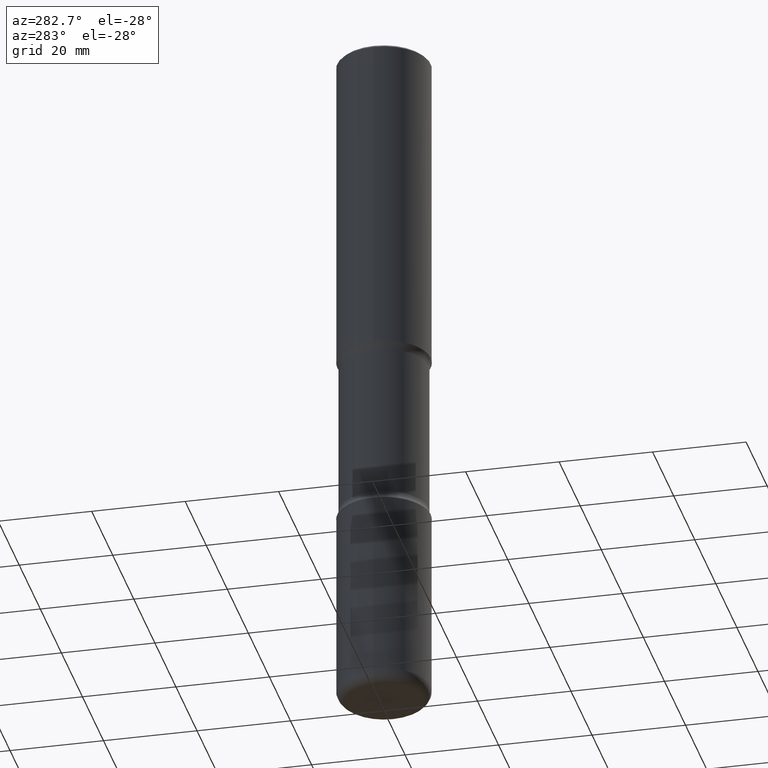
[diagram: clean part render]
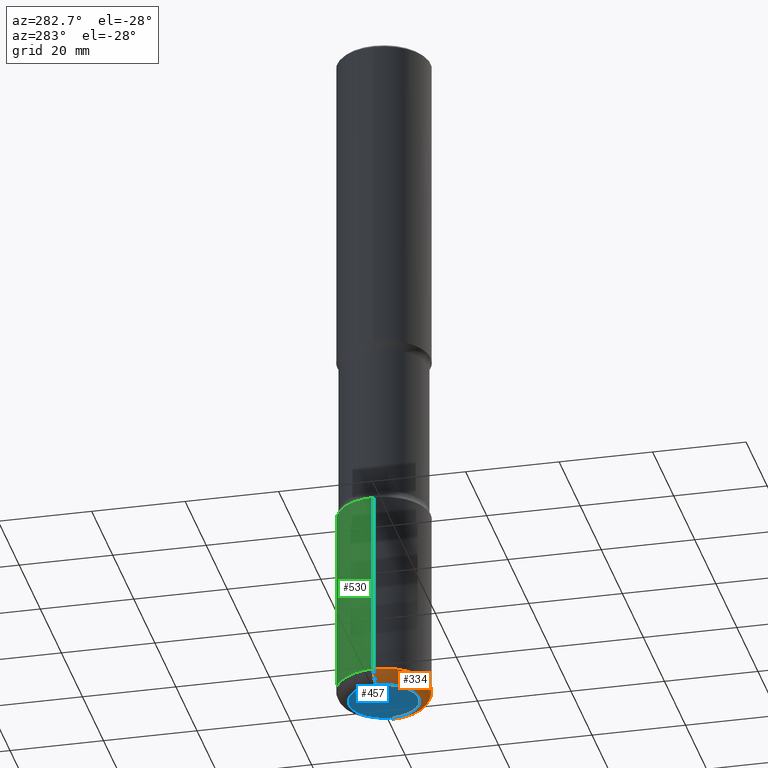
[diagram: same view with three faces highlighted in distinct colors, each labeled with its STEP entity id]
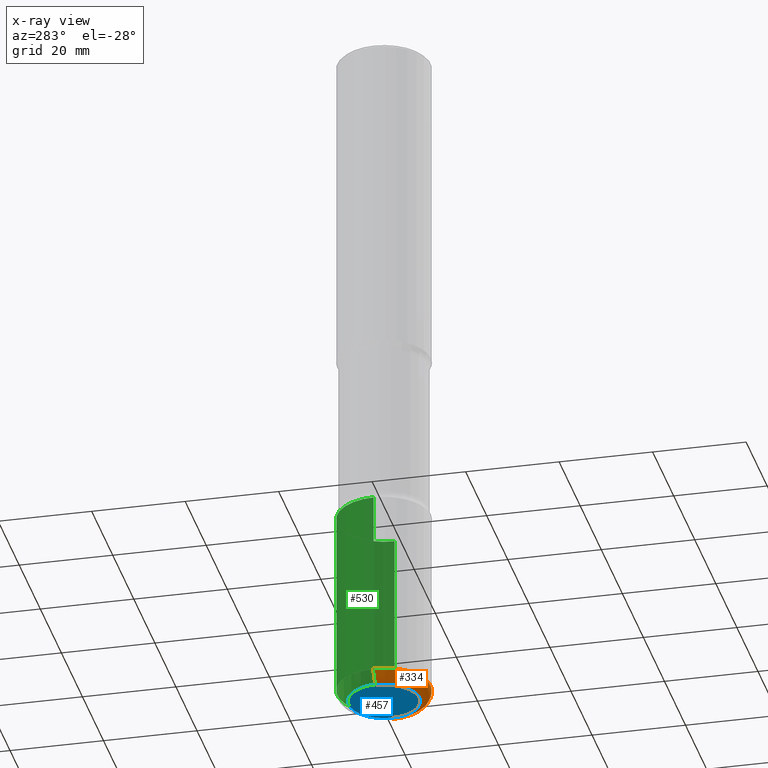
[diagram: x-ray of the same camera — body ghosted, the three highlighted faces saturated]
A machine part, auxiliary view with three faces highlighted in distinct colors.
The next image is the same camera in x-ray (body ghosted, the three faces saturated) — at least one of them is partly hidden behind the body in this view.
Their STEP definitions:

[orange] entity #334 — the highlighted toroidal blend (fillet) surface has major radius 7.5006 mm and minor (blend) radius 2.4994 mm.
#19 = CARTESIAN_POINT ( 'NONE',  ( 1.420108190439770332E-28, -2.027538128279602429E-14, -5.807099999999998374 ) ) ;
#43 = EDGE_CURVE ( 'NONE', #330, #217, #496, .T. ) ;
#58 = CIRCLE ( 'NONE', #331, 0.3937000000000004940 ) ;
#83 = DIRECTION ( 'NONE',  ( -6.982962677686266711E-15, -1.000000000000000000, 3.491481338843145583E-15 ) ) ;
#105 = DIRECTION ( 'NONE',  ( -2.445468806185136597E-29, 3.491481338843145583E-15, 1.000000000000000000 ) ) ;
#110 = DIRECTION ( 'NONE',  ( 1.000000000000000000, -6.982962677686270655E-15, 0.000000000000000000 ) ) ;
#112 = TOROIDAL_SURFACE ( 'NONE', #320, 0.2953000000000005620, 0.09840000000000062585 ) ;
#126 = CARTESIAN_POINT ( 'NONE',  ( 0.2953000000000005620, -2.233745016151678477E-14, -5.807099999999998374 ) ) ;
#144 = EDGE_LOOP ( 'NONE', ( #339, #337, #359, #466 ) ) ;
#207 = DIRECTION ( 'NONE',  ( -1.000000000000000000, 7.105427357600994759E-15, 0.000000000000000000 ) ) ;
#217 = VERTEX_POINT ( 'NONE', #237 ) ;
#237 = CARTESIAN_POINT ( 'NONE',  ( 0.3937000000000008271, -2.302457368900111381E-14, -5.807099999999998374 ) ) ;
#245 = DIRECTION ( 'NONE',  ( -2.445468806185136597E-29, 3.491481338843145583E-15, 1.000000000000000000 ) ) ;
#246 = VERTEX_POINT ( 'NONE', #375 ) ;
#262 = EDGE_CURVE ( 'NONE', #246, #330, #497, .T. ) ;
#267 = EDGE_CURVE ( 'NONE', #547, #217, #58, .T. ) ;
#270 = CIRCLE ( 'NONE', #550, 0.09840000000000061198 ) ;
#281 = CARTESIAN_POINT ( 'NONE',  ( 0.2953000000000005620, -2.268101192525895245E-14, -5.905499999999999972 ) ) ;
#284 = DIRECTION ( 'NONE',  ( 1.000000000000000000, -6.982962677686269866E-15, 0.000000000000000000 ) ) ;
#319 = CARTESIAN_POINT ( 'NONE',  ( 1.420108190439770332E-28, -2.027538128279602429E-14, -5.807099999999998374 ) ) ;
#320 = AXIS2_PLACEMENT_3D ( 'NONE', #319, #245, #495 ) ;
#324 = CARTESIAN_POINT ( 'NONE',  ( 1.444171603492632270E-28, -2.061894304653819197E-14, -5.905499999999999972 ) ) ;
#326 = DIRECTION ( 'NONE',  ( -2.445468806185136597E-29, 3.491481338843145583E-15, 1.000000000000000000 ) ) ;
#330 = VERTEX_POINT ( 'NONE', #281 ) ;
#331 = AXIS2_PLACEMENT_3D ( 'NONE', #19, #105, #284 ) ;
#334 = ADVANCED_FACE ( 'NONE', ( #464 ), #112, .T. ) ;
#337 = ORIENTED_EDGE ( 'NONE', *, *, #262, .T. ) ;
#339 = ORIENTED_EDGE ( 'NONE', *, *, #404, .F. ) ;
#359 = ORIENTED_EDGE ( 'NONE', *, *, #43, .T. ) ;
#375 = CARTESIAN_POINT ( 'NONE',  ( -0.2953000000000005620, -1.799934243997356436E-14, -5.905499999999999972 ) ) ;
#380 = CARTESIAN_POINT ( 'NONE',  ( -0.2953000000000005620, -1.817714858409644444E-14, -5.807099999999998374 ) ) ;
#391 = AXIS2_PLACEMENT_3D ( 'NONE', #126, #83, #487 ) ;
#392 = AXIS2_PLACEMENT_3D ( 'NONE', #324, #326, #110 ) ;
#404 = EDGE_CURVE ( 'NONE', #246, #547, #270, .T. ) ;
#433 = CARTESIAN_POINT ( 'NONE',  ( -0.3937000000000008271, -1.747797453210850398E-14, -5.807099999999998374 ) ) ;
#464 = FACE_OUTER_BOUND ( 'NONE', #144, .T. ) ;
#466 = ORIENTED_EDGE ( 'NONE', *, *, #267, .F. ) ;
#471 = DIRECTION ( 'NONE',  ( 7.105427357601001859E-15, 1.000000000000000000, -3.491481338843145583E-15 ) ) ;
#487 = DIRECTION ( 'NONE',  ( 1.000000000000000000, -6.982962677686257244E-15, 0.000000000000000000 ) ) ;
#495 = DIRECTION ( 'NONE',  ( 1.000000000000000000, -6.982962677686267499E-15, 4.883557194083112901E-29 ) ) ;
#496 = CIRCLE ( 'NONE', #391, 0.09840000000000061198 ) ;
#497 = CIRCLE ( 'NONE', #392, 0.2953000000000005620 ) ;
#547 = VERTEX_POINT ( 'NONE', #433 ) ;
#550 = AXIS2_PLACEMENT_3D ( 'NONE', #380, #471, #207 ) ;

[blue] entity #457 — the highlighted planar face has unit normal (0, -0, -1).
#35 = EDGE_LOOP ( 'NONE', ( #347, #413 ) ) ;
#44 = DIRECTION ( 'NONE',  ( 1.000000000000000000, -6.982962677686270655E-15, 0.000000000000000000 ) ) ;
#110 = DIRECTION ( 'NONE',  ( 1.000000000000000000, -6.982962677686270655E-15, 0.000000000000000000 ) ) ;
#122 = FACE_OUTER_BOUND ( 'NONE', #35, .T. ) ;
#128 = DIRECTION ( 'NONE',  ( -2.445468806185136597E-29, 3.491481338843145583E-15, 1.000000000000000000 ) ) ;
#154 = AXIS2_PLACEMENT_3D ( 'NONE', #522, #128, #44 ) ;
#225 = CIRCLE ( 'NONE', #154, 0.2953000000000005620 ) ;
#246 = VERTEX_POINT ( 'NONE', #375 ) ;
#262 = EDGE_CURVE ( 'NONE', #246, #330, #497, .T. ) ;
#281 = CARTESIAN_POINT ( 'NONE',  ( 0.2953000000000005620, -2.268101192525895245E-14, -5.905499999999999972 ) ) ;
#291 = PLANE ( 'NONE',  #498 ) ;
#296 = CARTESIAN_POINT ( 'NONE',  ( -8.181060289173079042E-30, -4.247187677709596397E-14, -5.905499999999998195 ) ) ;
#324 = CARTESIAN_POINT ( 'NONE',  ( 1.444171603492632270E-28, -2.061894304653819197E-14, -5.905499999999999972 ) ) ;
#326 = DIRECTION ( 'NONE',  ( -2.445468806185136597E-29, 3.491481338843145583E-15, 1.000000000000000000 ) ) ;
#330 = VERTEX_POINT ( 'NONE', #281 ) ;
#347 = ORIENTED_EDGE ( 'NONE', *, *, #367, .F. ) ;
#367 = EDGE_CURVE ( 'NONE', #330, #246, #225, .T. ) ;
#375 = CARTESIAN_POINT ( 'NONE',  ( -0.2953000000000005620, -1.799934243997356436E-14, -5.905499999999999972 ) ) ;
#392 = AXIS2_PLACEMENT_3D ( 'NONE', #324, #326, #110 ) ;
#413 = ORIENTED_EDGE ( 'NONE', *, *, #262, .F. ) ;
#457 = ADVANCED_FACE ( 'NONE', ( #122 ), #291, .T. ) ;
#473 = DIRECTION ( 'NONE',  ( 2.438088387897960049E-29, -3.491481338843145188E-15, -1.000000000000000000 ) ) ;
#481 = DIRECTION ( 'NONE',  ( -1.000000000000000000, 6.982962677686265922E-15, -4.876176775795935793E-29 ) ) ;
#497 = CIRCLE ( 'NONE', #392, 0.2953000000000005620 ) ;
#498 = AXIS2_PLACEMENT_3D ( 'NONE', #296, #473, #481 ) ;
#522 = CARTESIAN_POINT ( 'NONE',  ( 1.444171603492632270E-28, -2.061894304653819197E-14, -5.905499999999999972 ) ) ;

[green] entity #530 — the highlighted cylindrical surface (partial cylindrical patch) has radius 10 mm, axis along (-0, 0, 1).
#13 = CYLINDRICAL_SURFACE ( 'NONE', #362, 0.3937000000000003830 ) ;
#36 = LINE ( 'NONE', #283, #181 ) ;
#52 = CARTESIAN_POINT ( 'NONE',  ( 1.030178189293550378E-28, -1.470821428801063089E-14, -4.212599999999998346 ) ) ;
#54 = VERTEX_POINT ( 'NONE', #517 ) ;
#70 = ORIENTED_EDGE ( 'NONE', *, *, #493, .T. ) ;
#97 = EDGE_CURVE ( 'NONE', #54, #247, #541, .T. ) ;
#106 = CIRCLE ( 'NONE', #176, 0.3937000000000004940 ) ;
#107 = VECTOR ( 'NONE', #519, 39.37007874015748143 ) ;
#109 = CARTESIAN_POINT ( 'NONE',  ( 1.420108190439770332E-28, -2.027538128279602429E-14, -5.807099999999998374 ) ) ;
#113 = ORIENTED_EDGE ( 'NONE', *, *, #97, .F. ) ;
#141 = AXIS2_PLACEMENT_3D ( 'NONE', #52, #269, #523 ) ;
#145 = DIRECTION ( 'NONE',  ( -2.445468806185136877E-29, 3.491481338843145188E-15, 1.000000000000000000 ) ) ;
#156 = LINE ( 'NONE', #338, #107 ) ;
#175 = ORIENTED_EDGE ( 'NONE', *, *, #234, .F. ) ;
#176 = AXIS2_PLACEMENT_3D ( 'NONE', #109, #454, #328 ) ;
#181 = VECTOR ( 'NONE', #145, 39.37007874015748143 ) ;
#206 = ORIENTED_EDGE ( 'NONE', *, *, #231, .T. ) ;
#217 = VERTEX_POINT ( 'NONE', #237 ) ;
#231 = EDGE_CURVE ( 'NONE', #217, #547, #106, .T. ) ;
#234 = EDGE_CURVE ( 'NONE', #217, #54, #36, .T. ) ;
#237 = CARTESIAN_POINT ( 'NONE',  ( 0.3937000000000008271, -2.302457368900111381E-14, -5.807099999999998374 ) ) ;
#247 = VERTEX_POINT ( 'NONE', #287 ) ;
#269 = DIRECTION ( 'NONE',  ( -2.445468806185136597E-29, 3.491481338843145583E-15, 1.000000000000000000 ) ) ;
#283 = CARTESIAN_POINT ( 'NONE',  ( 0.3937000000000003830, -2.749192406205085978E-15, 1.919750796630861853E-29 ) ) ;
#287 = CARTESIAN_POINT ( 'NONE',  ( -0.3937000000000002720, -1.469439103471581201E-14, -4.212599999999998346 ) ) ;
#317 = FACE_OUTER_BOUND ( 'NONE', #376, .T. ) ;
#328 = DIRECTION ( 'NONE',  ( 1.000000000000000000, -6.982962677686269866E-15, 0.000000000000000000 ) ) ;
#338 = CARTESIAN_POINT ( 'NONE',  ( -0.3937000000000003830, 2.797406750687517153E-15, -1.936584745033358137E-29 ) ) ;
#362 = AXIS2_PLACEMENT_3D ( 'NONE', #441, #491, #390 ) ;
#376 = EDGE_LOOP ( 'NONE', ( #206, #70, #113, #175 ) ) ;
#390 = DIRECTION ( 'NONE',  ( 1.000000000000000000, -6.982962677686266711E-15, 4.876176775795935793E-29 ) ) ;
#433 = CARTESIAN_POINT ( 'NONE',  ( -0.3937000000000008271, -1.747797453210850398E-14, -5.807099999999998374 ) ) ;
#441 = CARTESIAN_POINT ( 'NONE',  ( 0.000000000000000000, 0.000000000000000000, 0.000000000000000000 ) ) ;
#454 = DIRECTION ( 'NONE',  ( -2.445468806185136597E-29, 3.491481338843145583E-15, 1.000000000000000000 ) ) ;
#491 = DIRECTION ( 'NONE',  ( -2.445468806185136597E-29, 3.491481338843145583E-15, 1.000000000000000000 ) ) ;
#493 = EDGE_CURVE ( 'NONE', #547, #247, #156, .T. ) ;
#517 = CARTESIAN_POINT ( 'NONE',  ( 0.3937000000000002720, -1.745740669421571411E-14, -4.212599999999998346 ) ) ;
#519 = DIRECTION ( 'NONE',  ( -2.445468806185136877E-29, 3.491481338843145188E-15, 1.000000000000000000 ) ) ;
#523 = DIRECTION ( 'NONE',  ( 1.000000000000000000, -6.982962677686269077E-15, 0.000000000000000000 ) ) ;
#530 = ADVANCED_FACE ( 'NONE', ( #317 ), #13, .T. ) ;
#541 = CIRCLE ( 'NONE', #141, 0.3937000000000002720 ) ;
#547 = VERTEX_POINT ( 'NONE', #433 ) ;